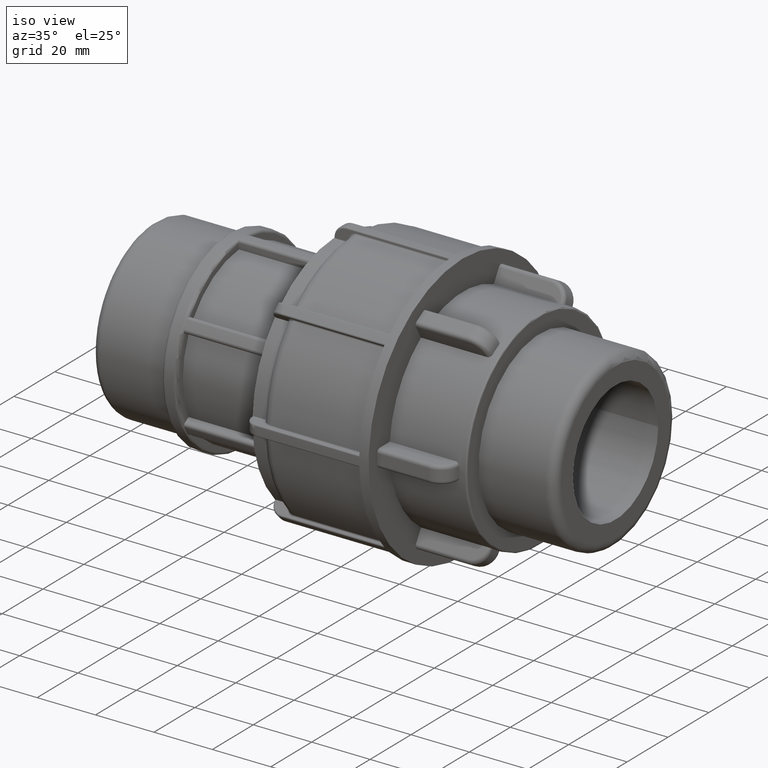
[diagram: clean part render]
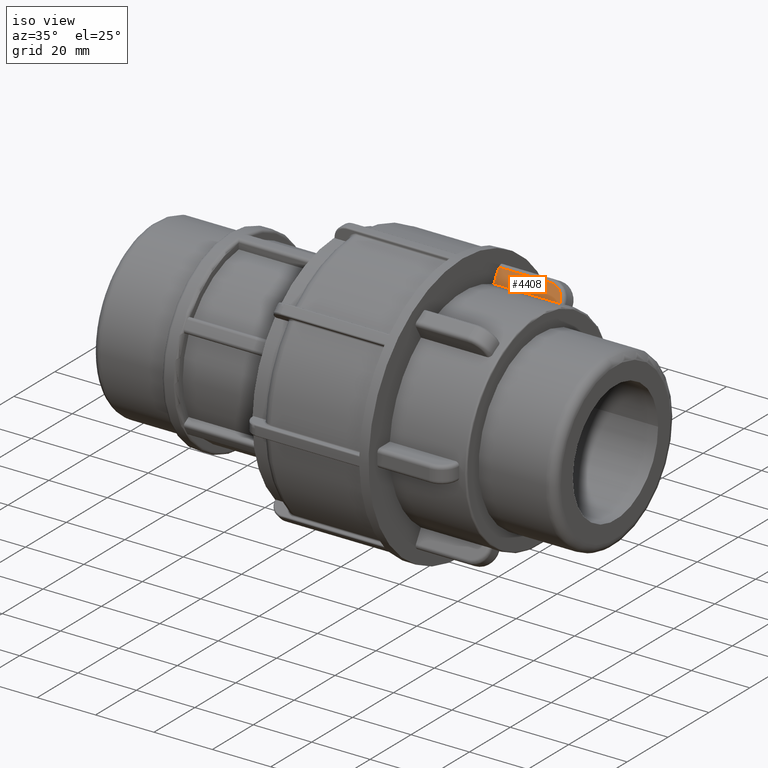
[diagram: same view with one face highlighted and labeled with its STEP entity id]
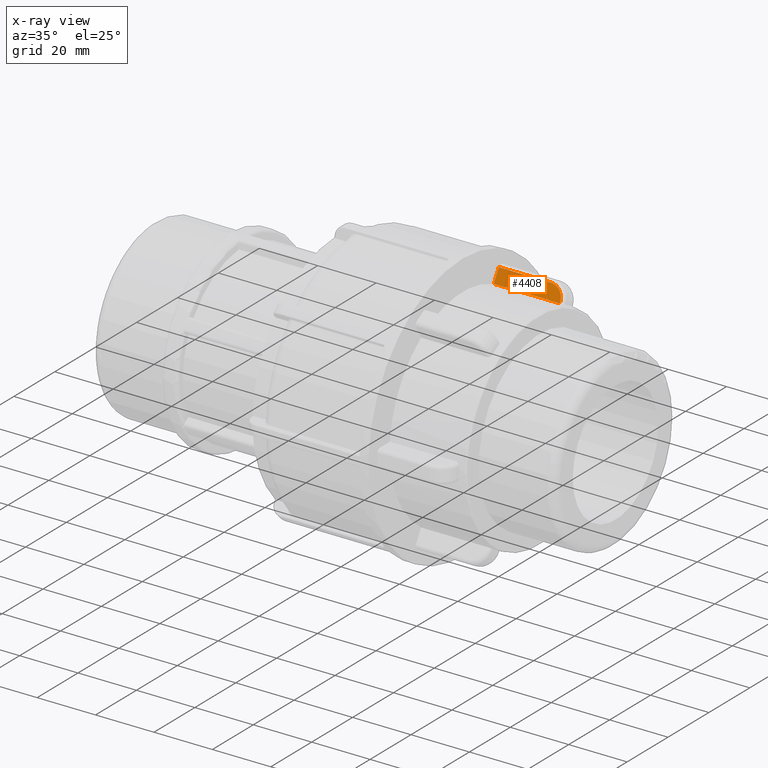
[diagram: x-ray of the same camera — body ghosted, the highlighted face saturated]
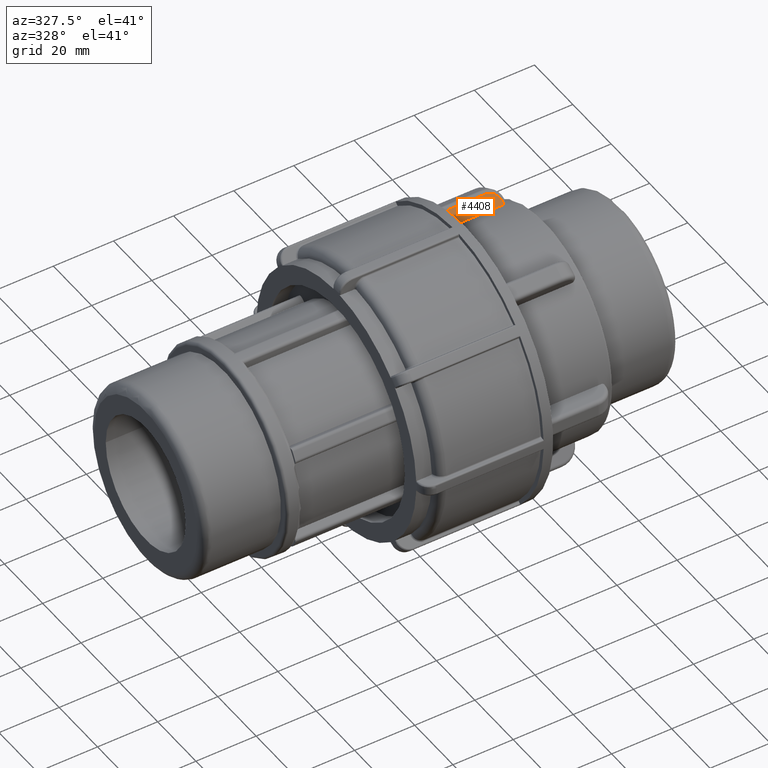
[diagram: same view with one face highlighted and labeled with its STEP entity id]
A machine part, iso view. The second image highlights one B-rep face of the part: STEP entity #4408.
The next image is the same camera in x-ray: the body ghosted, the highlighted face saturated — about 0% of this face is hidden behind the body in this view.
A second angle (auxiliary view) of the same face is appended — the face is thin or edge-on in the first view.
In plain terms, the highlighted planar face has unit normal (0, -0.866, 0.5).
Its self-contained STEP definition (entity closure, byte-faithful):
#74=PLANE('',#4733);
#221=FACE_OUTER_BOUND('',#494,.T.);
#494=EDGE_LOOP('',(#3026,#3027,#3028,#3029,#3030));
#913=LINE('',#6836,#1207);
#915=LINE('',#6857,#1209);
#916=LINE('',#6860,#1210);
#917=LINE('',#6861,#1211);
#1207=VECTOR('',#5396,17.8136);
#1209=VECTOR('',#5408,0.124412203037641);
#1210=VECTOR('',#5411,4.89353220303764);
#1211=VECTOR('',#5412,22.58272);
#1495=CIRCLE('',#4731,4.76912);
#1813=VERTEX_POINT('',#6829);
#1816=VERTEX_POINT('',#6834);
#1817=VERTEX_POINT('',#6838);
#1819=VERTEX_POINT('',#6844);
#1821=VERTEX_POINT('',#6859);
#2280=EDGE_CURVE('',#1816,#1813,#913,.T.);
#2283=EDGE_CURVE('',#1813,#1817,#1495,.T.);
#2286=EDGE_CURVE('',#1817,#1819,#915,.T.);
#2287=EDGE_CURVE('',#1821,#1816,#916,.T.);
#2288=EDGE_CURVE('',#1819,#1821,#917,.T.);
#3026=ORIENTED_EDGE('',*,*,#2286,.F.);
#3027=ORIENTED_EDGE('',*,*,#2283,.F.);
#3028=ORIENTED_EDGE('',*,*,#2280,.F.);
#3029=ORIENTED_EDGE('',*,*,#2287,.F.);
#3030=ORIENTED_EDGE('',*,*,#2288,.F.);
#4408=ADVANCED_FACE('',(#221),#74,.T.);
#4731=AXIS2_PLACEMENT_3D('',#6842,#5403,#5404);
#4733=AXIS2_PLACEMENT_3D('',#6858,#5409,#5410);
#5396=DIRECTION('',(1.,0.,0.));
#5403=DIRECTION('center_axis',(0.,0.866025403784439,-0.5));
#5404=DIRECTION('ref_axis',(0.707106781186548,0.353553390593274,0.612372435695795));
#5408=DIRECTION('',(0.,-0.5,-0.866025403784439));
#5409=DIRECTION('center_axis',(0.,-0.866025403784439,0.5));
#5410=DIRECTION('ref_axis',(0.,-0.5,-0.866025403784439));
#5411=DIRECTION('',(0.,0.5,0.866025403784439));
#5412=DIRECTION('',(-1.,0.,0.));
#6829=CARTESIAN_POINT('',(-34.4914,17.6873980789397,36.5968721264197));
#6834=CARTESIAN_POINT('',(-52.305,17.6873980789397,36.5968721264197));
#6836=CARTESIAN_POINT('',(-52.305,17.6873980789397,36.5968721264197));
#6838=CARTESIAN_POINT('',(-29.72228,15.3028380789397,32.4666930527233));
#6842=CARTESIAN_POINT('Origin',(-34.4914,15.3028380789397,32.4666930527233));
#6844=CARTESIAN_POINT('',(-29.72228,15.2406319774209,32.3589489243519));
#6857=CARTESIAN_POINT('',(-29.72228,15.6754255789397,33.1120335329884));
#6858=CARTESIAN_POINT('Origin',(-52.305,18.2835380789397,37.6294168948439));
#6859=CARTESIAN_POINT('',(-52.305,15.2406319774209,32.3589489243519));
#6860=CARTESIAN_POINT('',(-52.305,12.3221380789397,27.3039692106028));
#6861=CARTESIAN_POINT('',(-39.1525,15.2406319774209,32.3589489243519));